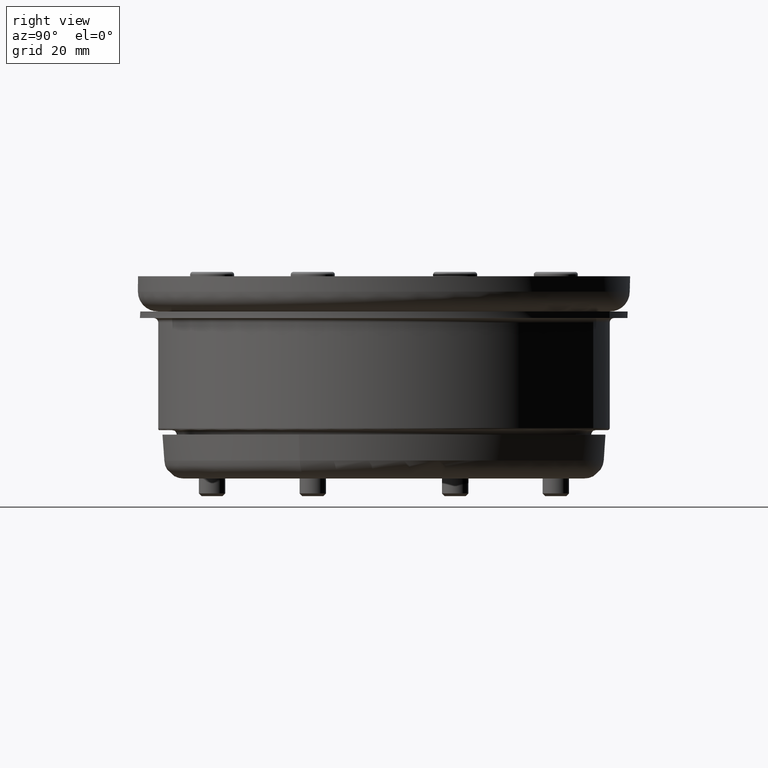
[diagram: clean part render]
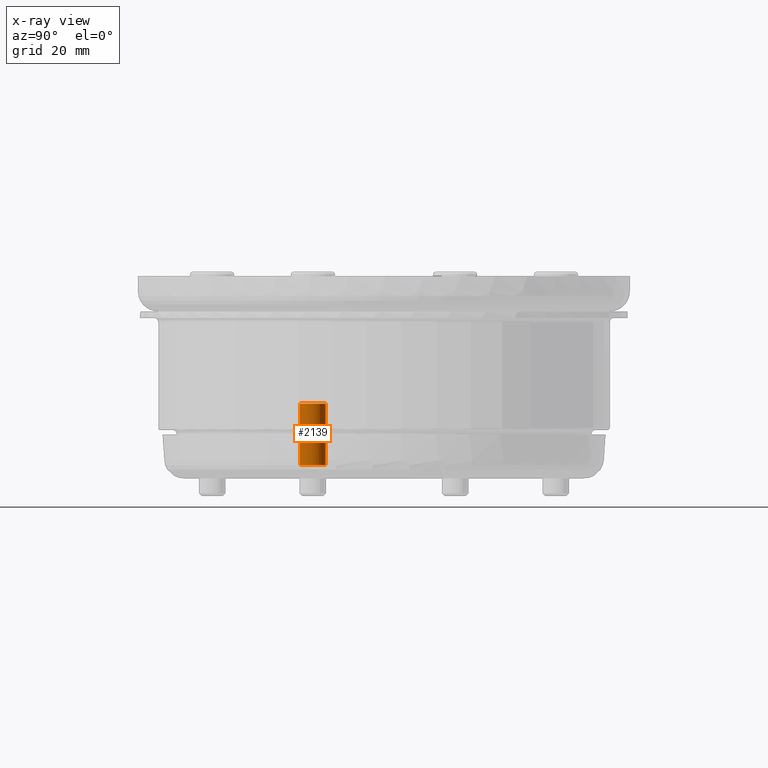
[diagram: x-ray — body ghosted, one internal face saturated and labeled with its STEP entity id]
A machine part, right view, then the same camera in x-ray: the body is ghosted and one INTERNAL B-rep face — a face not visible from any outside direction — is saturated and labeled: STEP entity #2139.
In plain terms, the highlighted cylindrical surface (bore or boss wall) has radius 2.95 mm, axis along (-0, -0, 1).
Its self-contained STEP definition (entity closure, byte-faithful):
#1598=CARTESIAN_POINT('',(-45.225532532653212,0.379156168864066,0.0));
#1599=VERTEX_POINT('',#1598);
#1600=CARTESIAN_POINT('',(-45.225532532653212,-0.379156168864121,0.0));
#1601=VERTEX_POINT('',#1600);
#1602=CARTESIAN_POINT('',(-45.225532532653219,0.379156168864066,-1.054751E-015));
#1603=CARTESIAN_POINT('',(-45.2580489720279,0.128262449999695,-1.079763E-015));
#1604=CARTESIAN_POINT('',(-45.258249222678245,-0.126717335241302,-1.118066E-015));
#1605=CARTESIAN_POINT('',(-45.225532532653219,-0.379156168864121,-1.110926E-015));
#1606=B_SPLINE_CURVE_WITH_KNOTS('',3,(#1602,#1603,#1604,#1605),.UNSPECIFIED.,.F.,.U.,(4,4),(1.850979527732355,1.927344553676394),.UNSPECIFIED.);
#1607=EDGE_CURVE('',#1599,#1601,#1606,.T.);
#1716=CARTESIAN_POINT('',(-42.300000000000004,-2.569372E-014,0.0));
#1717=DIRECTION('',(0.0,0.0,1.0));
#1718=DIRECTION('',(-1.0,0.0,0.0));
#1719=AXIS2_PLACEMENT_3D('',#1716,#1717,#1718);
#1720=CIRCLE('',#1719,2.95);
#1721=EDGE_CURVE('',#1601,#1599,#1720,.T.);
#2043=CARTESIAN_POINT('',(-45.25,-2.748560E-014,14.000000000000004));
#2044=VERTEX_POINT('',#2043);
#2045=CARTESIAN_POINT('',(-42.300000000000004,-2.569372E-014,14.000000000000014));
#2046=DIRECTION('',(0.0,0.0,1.0));
#2047=DIRECTION('',(-1.0,0.0,0.0));
#2048=AXIS2_PLACEMENT_3D('',#2045,#2046,#2047);
#2049=CIRCLE('',#2048,2.95);
#2050=EDGE_CURVE('',#2044,#2044,#2049,.T.);
#2127=CARTESIAN_POINT('',(-42.300000000000004,-2.569372E-014,0.0));
#2128=DIRECTION('',(0.0,0.0,1.0));
#2129=DIRECTION('',(-1.0,0.0,0.0));
#2130=AXIS2_PLACEMENT_3D('',#2127,#2128,#2129);
#2131=CYLINDRICAL_SURFACE('',#2130,2.95);
#2132=ORIENTED_EDGE('',*,*,#1607,.F.);
#2133=ORIENTED_EDGE('',*,*,#1721,.F.);
#2134=EDGE_LOOP('',(#2132,#2133));
#2135=FACE_OUTER_BOUND('',#2134,.T.);
#2136=ORIENTED_EDGE('',*,*,#2050,.T.);
#2137=EDGE_LOOP('',(#2136));
#2138=FACE_BOUND('',#2137,.T.);
#2139=ADVANCED_FACE('',(#2135,#2138),#2131,.F.);